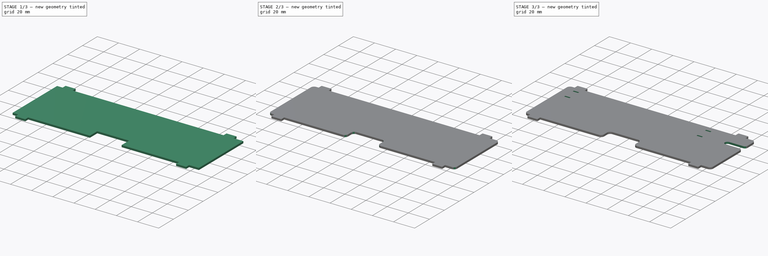
[diagram: build sequence overview — one tinted view per stage of 3, left to right]
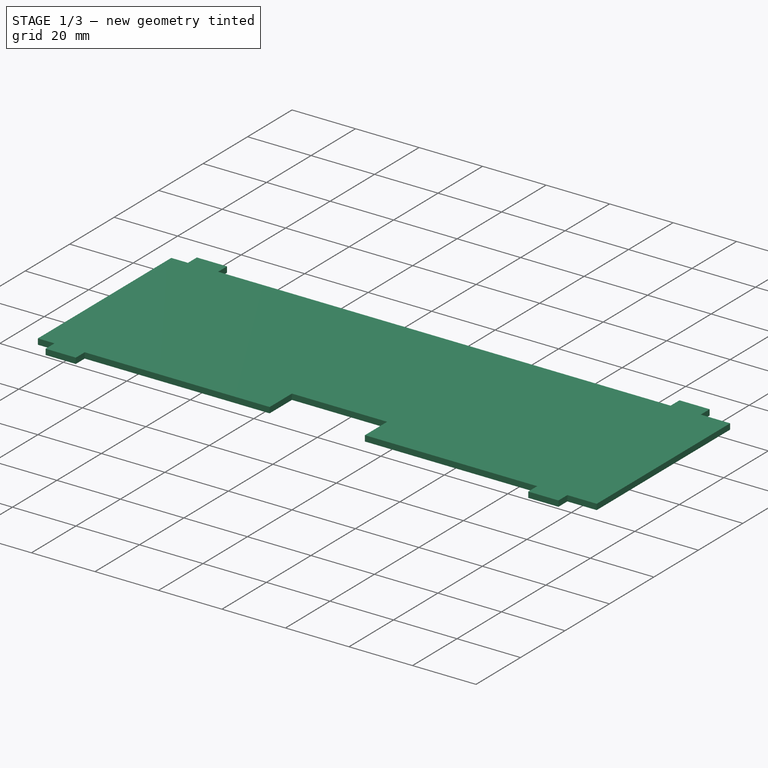
[diagram: stage 1 of 3 — iso view after this stage's code; geometry added in this stage tinted green]
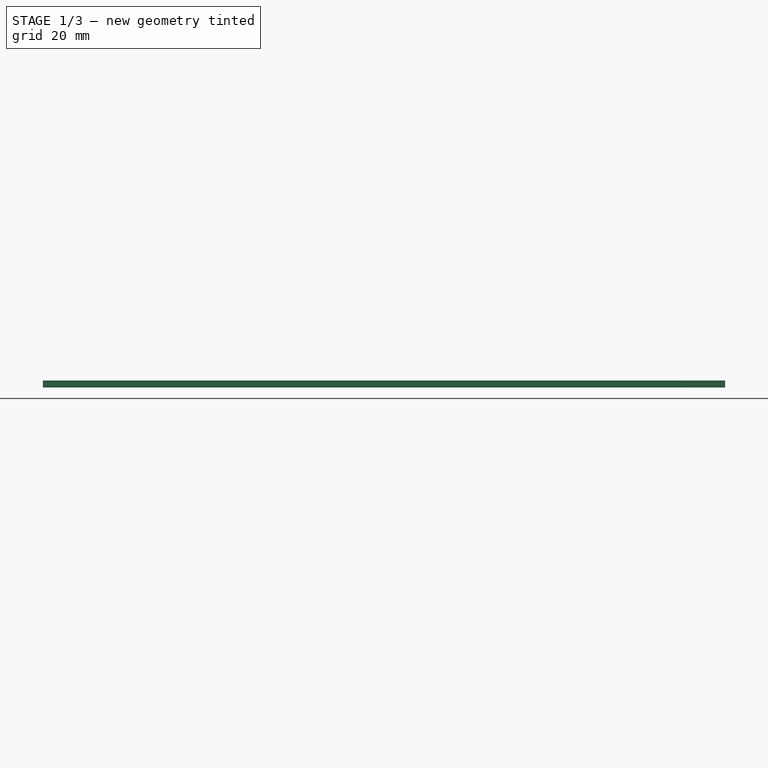
[diagram: stage 1 of 3 — front view after this stage's code; geometry added in this stage tinted green]
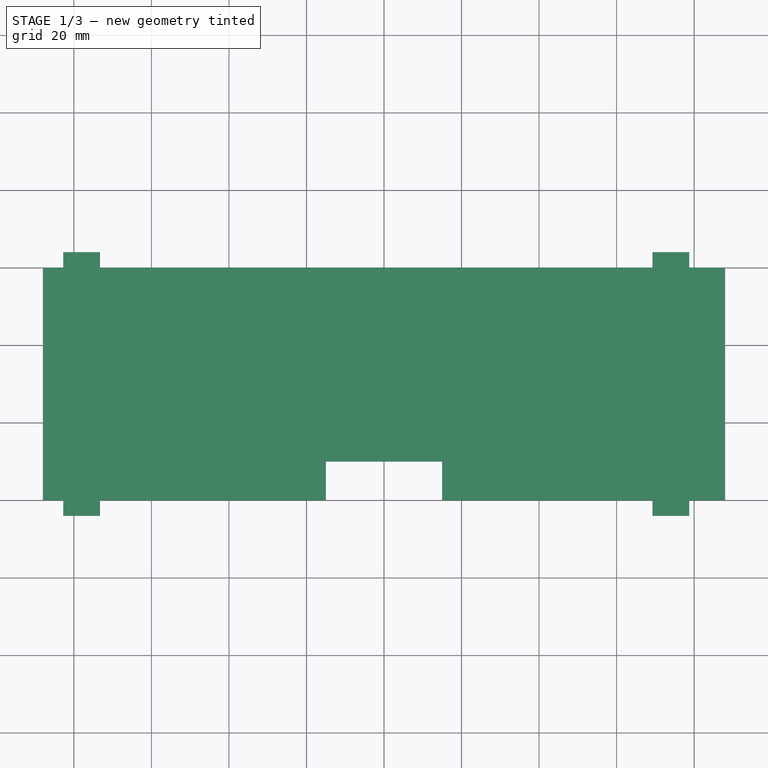
[diagram: stage 1 of 3 — top view after this stage's code; geometry added in this stage tinted green]
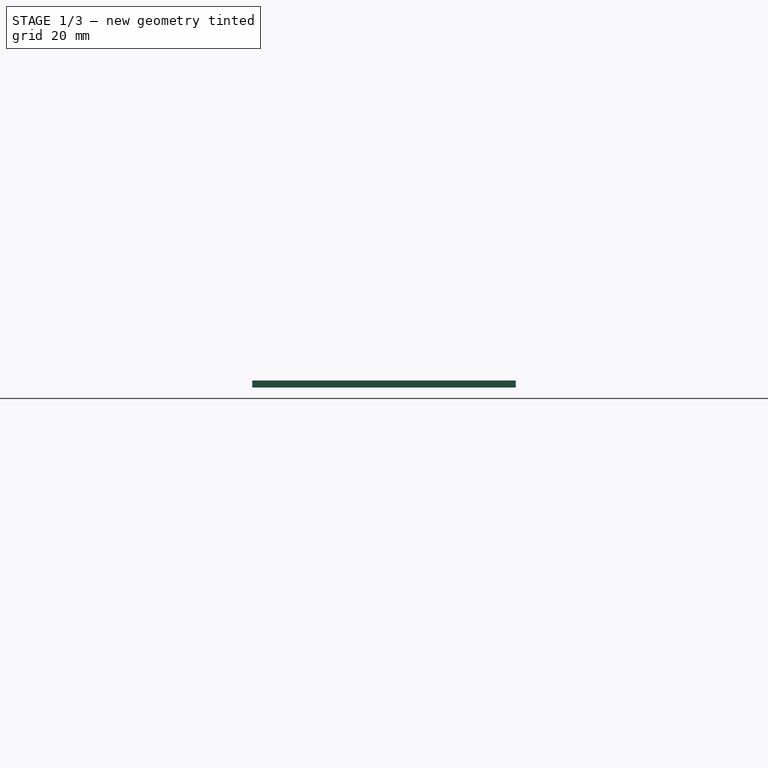
[diagram: stage 1 of 3 — right view after this stage's code; geometry added in this stage tinted green]
FCSTD DOCUMENT  (FreeCAD 0.18R16131 (Git))
Label: HBlock2_1_Separator
License: All rights reserved
LicenseURL: http://en.wikipedia.org/wiki/All_rights_reserved
objects: Sketcher::SketchObject×3, PartDesign::Fillet×3, PartDesign::Pocket×2, PartDesign::Pad×1, PartDesign::Body×1, App::Part×1
note: 13 computed .brp shape members not serialized (recipe doc carries the construction recipe); baked Part::Feature solids carry a one-line shape summary decoded from their .brp

FEATURE [Sketcher::SketchObject] Sketch
  MapMode = 5
  Support = -> [XY_Plane001]
  sketch-geometry (20):
    g0: LineSegment StartX=88 StartY=0 StartZ=0 EndX=88 EndY=60 EndZ=0
    g1: LineSegment StartX=-88 StartY=60 StartZ=0 EndX=-88 EndY=0 EndZ=0
    g2: LineSegment StartX=-73.25 StartY=0 StartZ=0 EndX=69.25 EndY=0 EndZ=0
    g3: LineSegment StartX=-73.25 StartY=0 StartZ=0 EndX=-73.25 EndY=-4 EndZ=0
    g4: LineSegment StartX=-73.25 StartY=-4 StartZ=0 EndX=-82.75 EndY=-4 EndZ=0
    g5: LineSegment StartX=-82.75 StartY=-4 StartZ=0 EndX=-82.75 EndY=0 EndZ=0
    g6: LineSegment StartX=-82.75 StartY=0 StartZ=0 EndX=-88 EndY=0 EndZ=0
    g7: LineSegment StartX=69.25 StartY=0 StartZ=0 EndX=69.25 EndY=-4 EndZ=0
    g8: LineSegment StartX=69.25 StartY=-4 StartZ=0 EndX=78.75 EndY=-4 EndZ=0
    g9: LineSegment StartX=78.75 StartY=-4 StartZ=0 EndX=78.75 EndY=0 EndZ=0
    g10: LineSegment StartX=78.75 StartY=0 StartZ=0 EndX=88 EndY=0 EndZ=0
    g11: LineSegment StartX=-88 StartY=60 StartZ=0 EndX=-82.75 EndY=60 EndZ=0
    g12: LineSegment StartX=-82.75 StartY=60 StartZ=0 EndX=-82.75 EndY=64 EndZ=0
    g13: LineSegment StartX=-82.75 StartY=64 StartZ=0 EndX=-73.25 EndY=64 EndZ=0
    g14: LineSegment StartX=-73.25 StartY=64 StartZ=0 EndX=-73.25 EndY=60 EndZ=0
    g15: LineSegment StartX=-73.25 StartY=60 StartZ=0 EndX=69.25 EndY=60 EndZ=0
    g16: LineSegment StartX=69.25 StartY=60 StartZ=0 EndX=69.25 EndY=64 EndZ=0
    g17: LineSegment StartX=69.25 StartY=64 StartZ=0 EndX=78.75 EndY=64 EndZ=0
    g18: LineSegment StartX=78.75 StartY=64 StartZ=0 EndX=78.75 EndY=60 EndZ=0
    g19: LineSegment StartX=78.75 StartY=60 StartZ=0 EndX=88 EndY=60 EndZ=0
  constraints (59):
    c: Vertical(g0)
    c: Vertical(g1)
    c: PointOnObject(g1,g-1)
    c: Symmetric(g1,g0,g-2)
    c: Distance(g1) = 60
    c: PointOnObject(g2,g-1)
    c: PointOnObject(g2,g-1)
    c: Distance(g2) = 142.5
    c: Coincident(g3,g2)
    c: Vertical(g3)
    c: Coincident(g4,g3)
    c: Horizontal(g4)
    c: Coincident(g5,g4)
    c: PointOnObject(g5,g-1)
    c: Vertical(g5)
    c: Coincident(g6,g5)
    c: Coincident(g6,g1)
    c: Coincident(g7,g2)
    c: Coincident(g8,g7)
    c: Horizontal(g8)
    c: Coincident(g9,g8)
    c: PointOnObject(g9,g-1)
    c: Vertical(g9)
    c: Coincident(g10,g9)
    c: Coincident(g10,g0)
    c: Vertical(g7)
    c: Equal(g4,g8)
    c: Distance(g4) = 9.5
    c: Distance(g3) = 4
    c: Equal(g7,g3)
    c: PointOnObject(g0,g-1)
    c: Distance(g10) = 9.25
    c: Coincident(g11,g1)
    c: Horizontal(g11)
    c: Coincident(g12,g11)
    c: Vertical(g12)
    c: Coincident(g13,g12)
    c: Horizontal(g13)
    c: Coincident(g14,g13)
    c: Vertical(g14)
    c: Coincident(g15,g14)
    c: Horizontal(g15)
    c: Coincident(g16,g15)
    c: Vertical(g16)
    c: Coincident(g17,g16)
    c: Horizontal(g17)
    c: Coincident(g18,g17)
    c: Vertical(g18)
    c: Coincident(g19,g18)
    c: Coincident(g19,g0)
    c: Equal(g2,g15)
    c: Equal(g14,g16)
    c: Equal(g16,g7)
    c: Equal(g14,g12)
    c: Equal(g12,g18)
    c: Equal(g13,g17)
    c: Equal(g17,g8)
    c: Equal(g11,g6)
    c: Distance(g1,g0) = 176
FEATURE [PartDesign::Pad] Pad
  Length = 1.8
  Length2 = 100
  Profile = -> Sketch
  Reversed = true
  Type = 0
FEATURE [Sketcher::SketchObject] Sketch001
  MapMode = 5
  Support = -> [XY_Plane001]
  sketch-geometry (4):
    g0: LineSegment StartX=-15 StartY=0 StartZ=0 EndX=-15 EndY=10 EndZ=0
    g1: LineSegment StartX=-15 StartY=10 StartZ=0 EndX=15 EndY=10 EndZ=0
    g2: LineSegment StartX=15 StartY=10 StartZ=0 EndX=15 EndY=0 EndZ=0
    g3: LineSegment StartX=15 StartY=0 StartZ=0 EndX=-15 EndY=0 EndZ=0
  constraints (11):
    c: PointOnObject(g0,g-1)
    c: Vertical(g0)
    c: Coincident(g1,g0)
    c: Coincident(g2,g1)
    c: PointOnObject(g2,g-1)
    c: Vertical(g2)
    c: Coincident(g3,g2)
    c: Coincident(g3,g0)
    c: Symmetric(g1,g0,g-2)
    c: Distance(g1) = 30
    c: Distance(g0) = 10
FEATURE [PartDesign::Pocket] Pocket
  BaseFeature = -> Pad
  Length = 5
  Length2 = 100
  Midplane = true
  Profile = -> Sketch001
  Type = 1
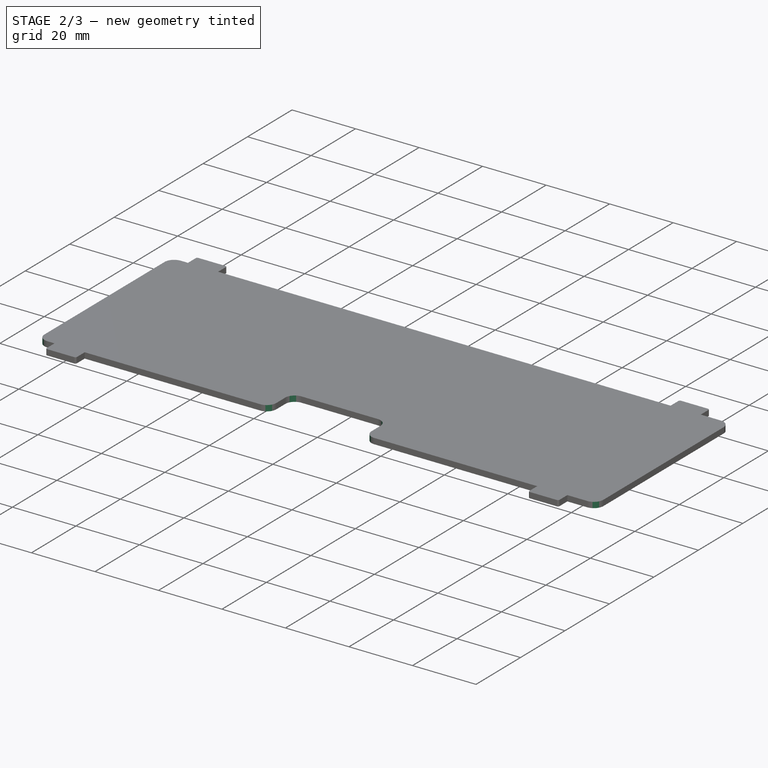
[diagram: stage 2 of 3 — iso view after this stage's code; geometry added in this stage tinted green]
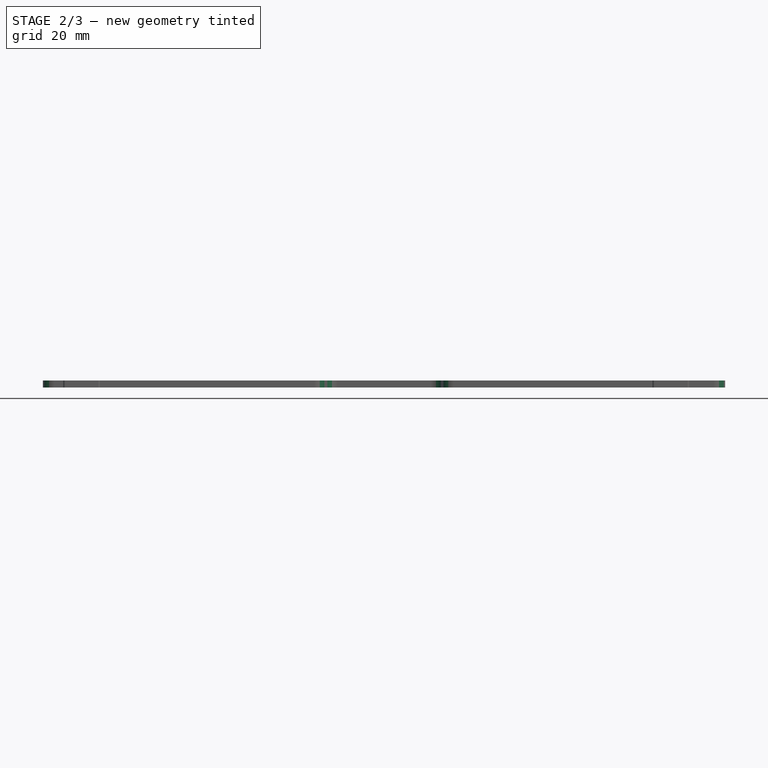
[diagram: stage 2 of 3 — front view after this stage's code; geometry added in this stage tinted green]
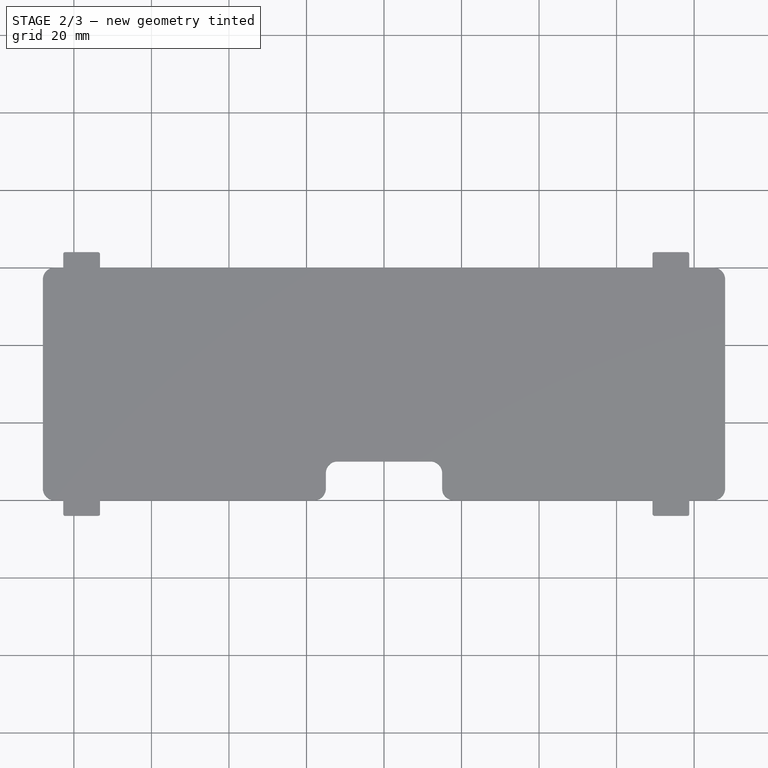
[diagram: stage 2 of 3 — top view after this stage's code; geometry added in this stage tinted green]
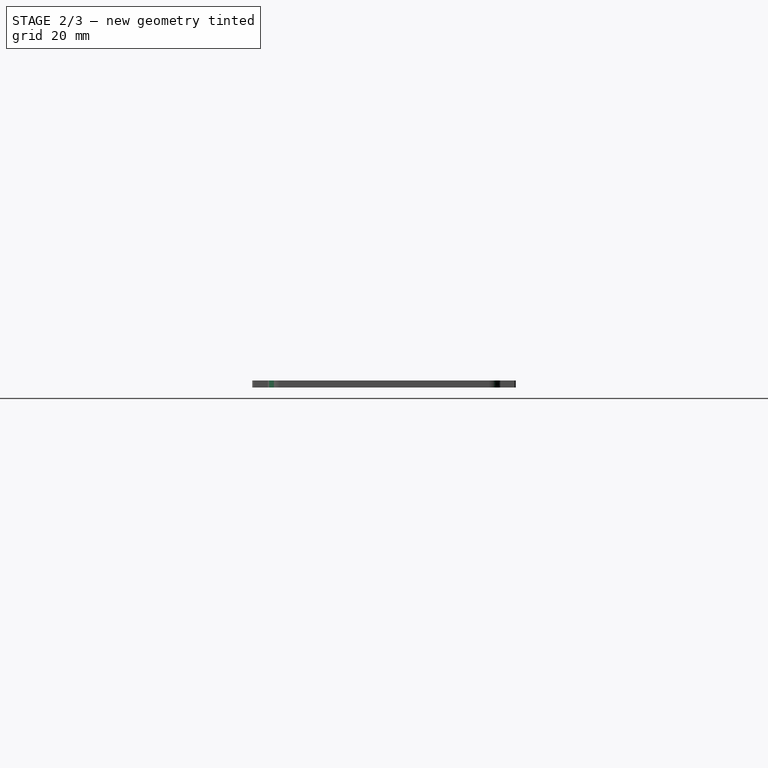
[diagram: stage 2 of 3 — right view after this stage's code; geometry added in this stage tinted green]
FEATURE [PartDesign::Fillet] Fillet
  Base = -> Pocket [Edge66,Edge65,Edge56,Edge55,Edge71,Edge72,Edge28,Edge2]
  BaseFeature = -> Pocket
  Radius = 3
FEATURE [PartDesign::Fillet] Fillet001
  Base = -> Fillet [Edge72,Edge38,Edge92,Edge94,Edge85,Edge83,Edge77,Edge76]
  BaseFeature = -> Fillet
  Radius = 0.5
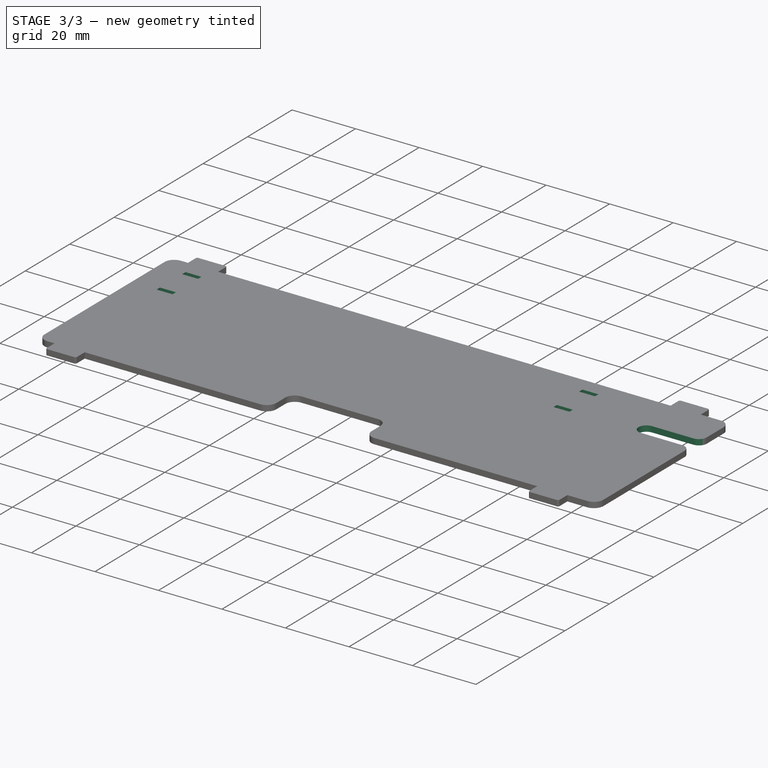
[diagram: stage 3 of 3 — iso view after this stage's code; geometry added in this stage tinted green]
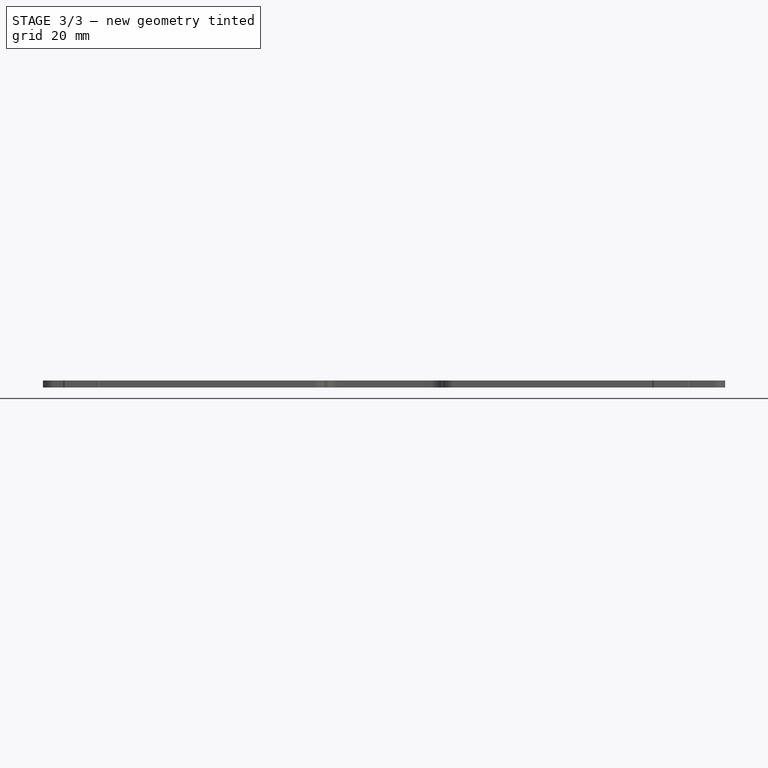
[diagram: stage 3 of 3 — front view after this stage's code; geometry added in this stage tinted green]
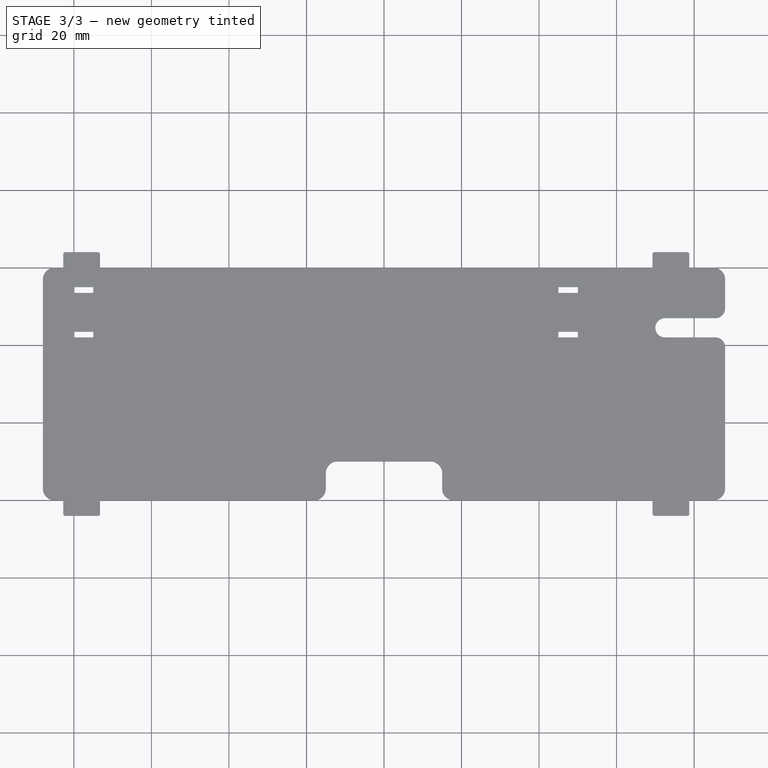
[diagram: stage 3 of 3 — top view after this stage's code; geometry added in this stage tinted green]
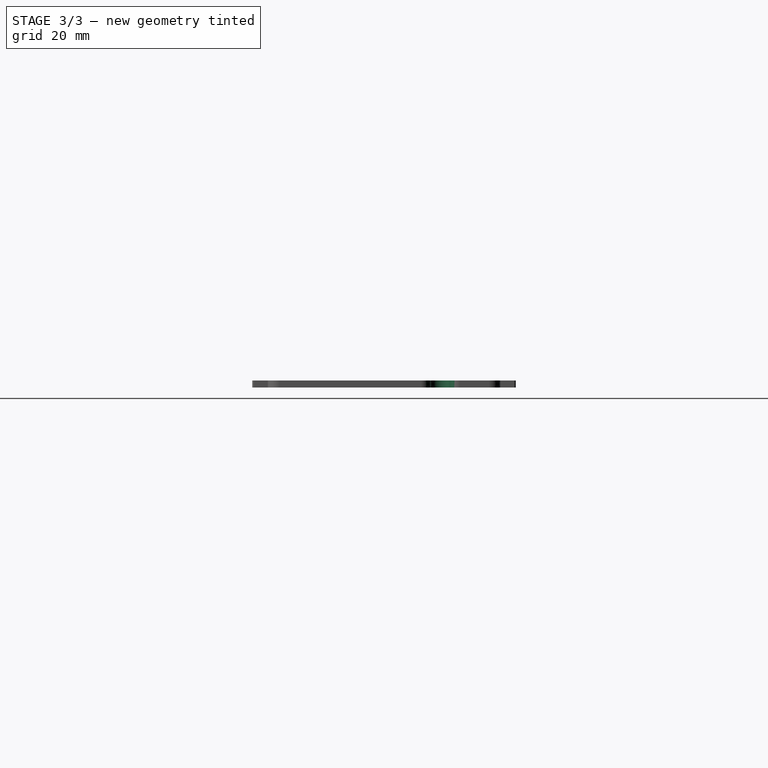
[diagram: stage 3 of 3 — right view after this stage's code; geometry added in this stage tinted green]
FEATURE [Sketcher::SketchObject] Sketch002
  MapMode = 5
  Support = -> [XY_Plane001]
  sketch-geometry (20):
    g0: LineSegment StartX=50 StartY=55 StartZ=0 EndX=45 EndY=55 EndZ=0
    g1: LineSegment StartX=45 StartY=55 StartZ=0 EndX=45 EndY=53.5 EndZ=0
    g2: LineSegment StartX=45 StartY=53.5 StartZ=0 EndX=50 EndY=53.5 EndZ=0
    g3: LineSegment StartX=50 StartY=53.5 StartZ=0 EndX=50 EndY=55 EndZ=0
    g4: LineSegment StartX=50 StartY=42 StartZ=0 EndX=45 EndY=42 EndZ=0
    g5: LineSegment StartX=45 StartY=42 StartZ=0 EndX=45 EndY=43.5 EndZ=0
    g6: LineSegment StartX=45 StartY=43.5 StartZ=0 EndX=50 EndY=43.5 EndZ=0
    g7: LineSegment StartX=50 StartY=43.5 StartZ=0 EndX=50 EndY=42 EndZ=0
    g8: LineSegment StartX=-75 StartY=55 StartZ=0 EndX=-80 EndY=55 EndZ=0
    g9: LineSegment StartX=-80 StartY=55 StartZ=0 EndX=-80 EndY=53.5 EndZ=0
    g10: LineSegment StartX=-80 StartY=53.5 StartZ=0 EndX=-75 EndY=53.5 EndZ=0
    g11: LineSegment StartX=-75 StartY=53.5 StartZ=0 EndX=-75 EndY=55 EndZ=0
    g12: LineSegment StartX=-80 StartY=43.5 StartZ=0 EndX=-75 EndY=43.5 EndZ=0
    g13: LineSegment StartX=-75 StartY=43.5 StartZ=0 EndX=-75 EndY=42 EndZ=0
    g14: LineSegment StartX=-75 StartY=42 StartZ=0 EndX=-80 EndY=42 EndZ=0
    g15: LineSegment StartX=-80 StartY=42 StartZ=0 EndX=-80 EndY=43.5 EndZ=0
    g16: LineSegment StartX=70 StartY=47 StartZ=0 EndX=120 EndY=47 EndZ=0
    g17: LineSegment StartX=120 StartY=47 StartZ=0 EndX=120 EndY=42 EndZ=0
    g18: LineSegment StartX=120 StartY=42 StartZ=0 EndX=70 EndY=42 EndZ=0
    g19: LineSegment StartX=70 StartY=42 StartZ=0 EndX=70 EndY=47 EndZ=0
  constraints (60):
    c: Coincident(g0,g1)
    c: Coincident(g1,g2)
    c: Coincident(g2,g3)
    c: Coincident(g3,g0)
    c: Horizontal(g0)
    c: Vertical(g3)
    c: Coincident(g4,g5)
    c: Coincident(g5,g6)
    c: Coincident(g6,g7)
    c: Coincident(g7,g4)
    c: Horizontal(g4)
    c: Horizontal(g6)
    c: Vertical(g5)
    c: Vertical(g7)
    c: Coincident(g8,g9)
    c: Coincident(g9,g10)
    c: Coincident(g10,g11)
    c: Coincident(g11,g8)
    c: Horizontal(g8)
    c: Horizontal(g10)
    c: Vertical(g9)
    c: Vertical(g11)
    c: Coincident(g12,g13)
    c: Coincident(g13,g14)
    c: Coincident(g14,g15)
    c: Coincident(g15,g12)
    c: Horizontal(g12)
    c: Horizontal(g14)
    c: Vertical(g13)
    c: Vertical(g15)
    c: Equal(g5,g1)
    c: Equal(g1,g9)
    c: Equal(g9,g13)
    c: Equal(g0,g8)
    c: Equal(g8,g12)
    c: Equal(g12,g4)
    c: Distance(g1) = 1.5
    c: Distance(g0) = 5
    c: Vertical(g10,g12)
    c: Distance(g9,g12) = 10
    c: Vertical(g4,g1)
    c: Horizontal(g2)
    c: Vertical(g1)
    c: DistanceX(g-2,g2) = 50
    c: DistanceX(g-2,g8) = -80
    c: DistanceY(g-1,g8) = 55
    c: Distance(g5,g1) = 10
    c: Horizontal(g4,g13)
    c: Coincident(g16,g17)
    c: Coincident(g17,g18)
    c: Coincident(g18,g19)
    c: Coincident(g19,g16)
    c: Horizontal(g16)
    c: Horizontal(g18)
    c: Vertical(g17)
    c: Vertical(g19)
    c: Horizontal(g4,g18)
    c: Distance(g4,g18) = 20
    c: Distance(g16) = 50
    c: Distance(g19) = 5
FEATURE [PartDesign::Pocket] Pocket001
  BaseFeature = -> Fillet001
  Length = 5
  Length2 = 100
  Midplane = true
  Profile = -> Sketch002
  Type = 1
FEATURE [PartDesign::Fillet] Fillet002
  Base = -> Pocket001 [Edge105,Edge103,Edge101,Edge107]
  BaseFeature = -> Pocket001
  Radius = 2.49
FEATURE [PartDesign::Body] Body  label="SeparatorBody"
  Group = -> [Sketch,Pad,Sketch001,Pocket,Fillet,Fillet001,Sketch002,Pocket001,Fillet002]
  Origin = -> Origin001
  Tip = -> Fillet002
FEATURE [App::Part] Part  label="SeparatorPart"
  Group = -> [Body]
  Origin = -> Origin
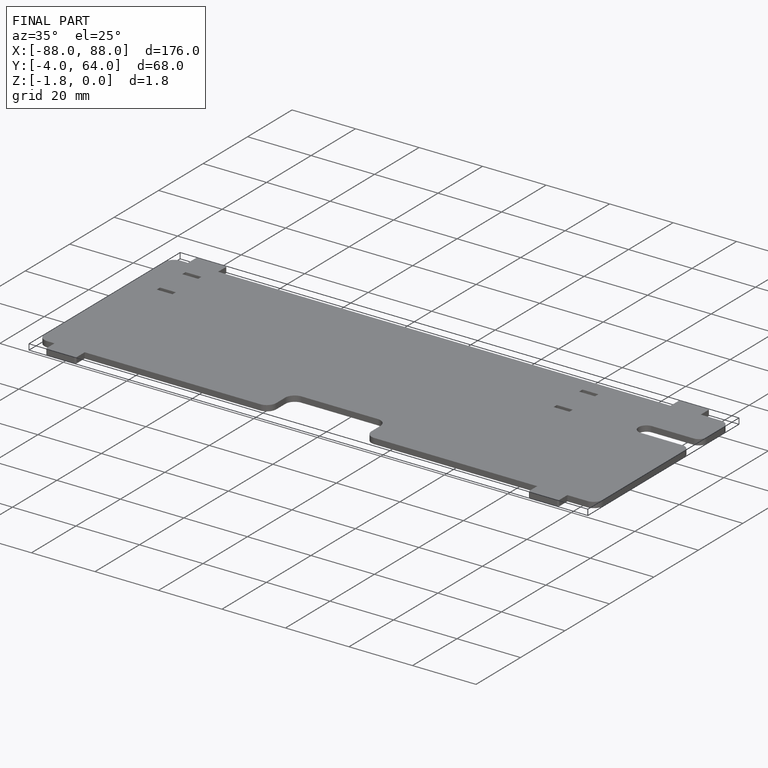
[diagram: finished part — iso view with bounding-box wireframe]
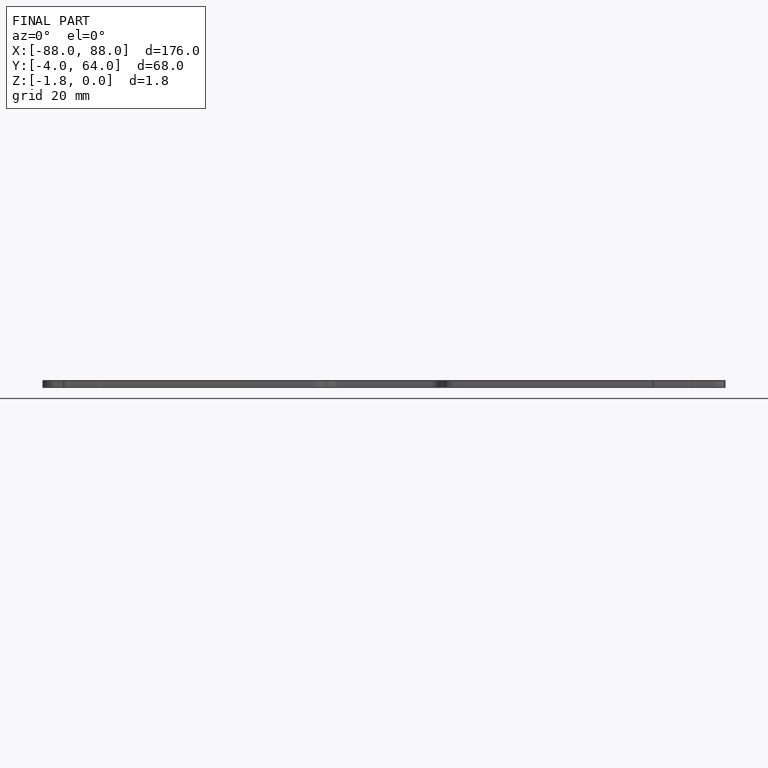
[diagram: finished part — front view with bounding-box wireframe]
